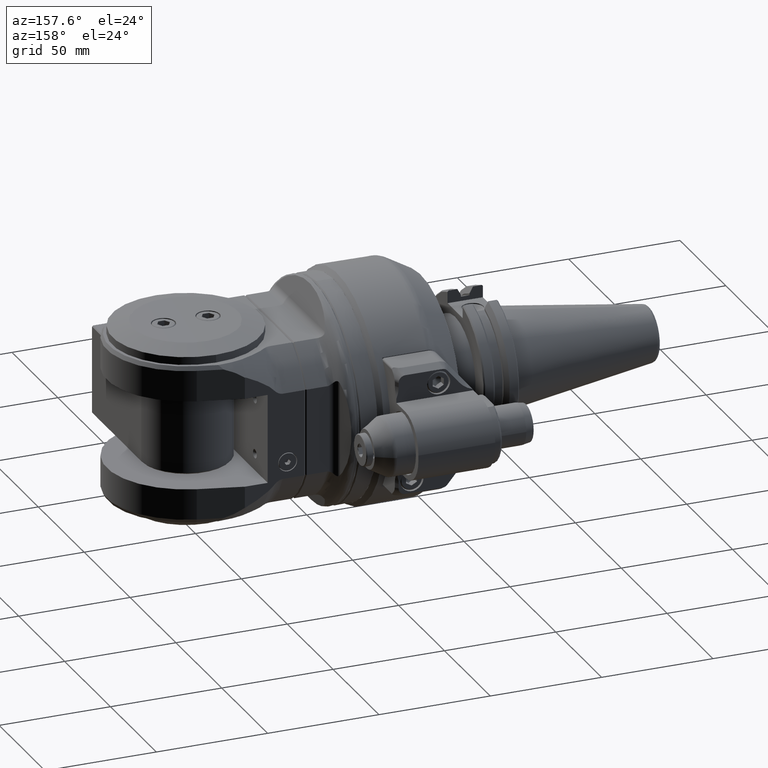
[diagram: clean part render]
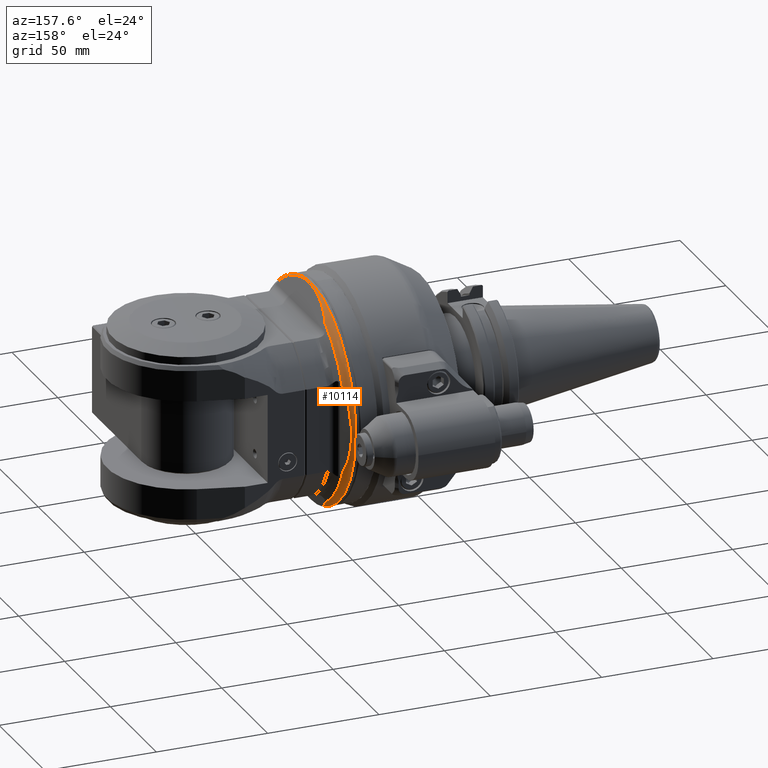
[diagram: same view with one face highlighted and labeled with its STEP entity id]
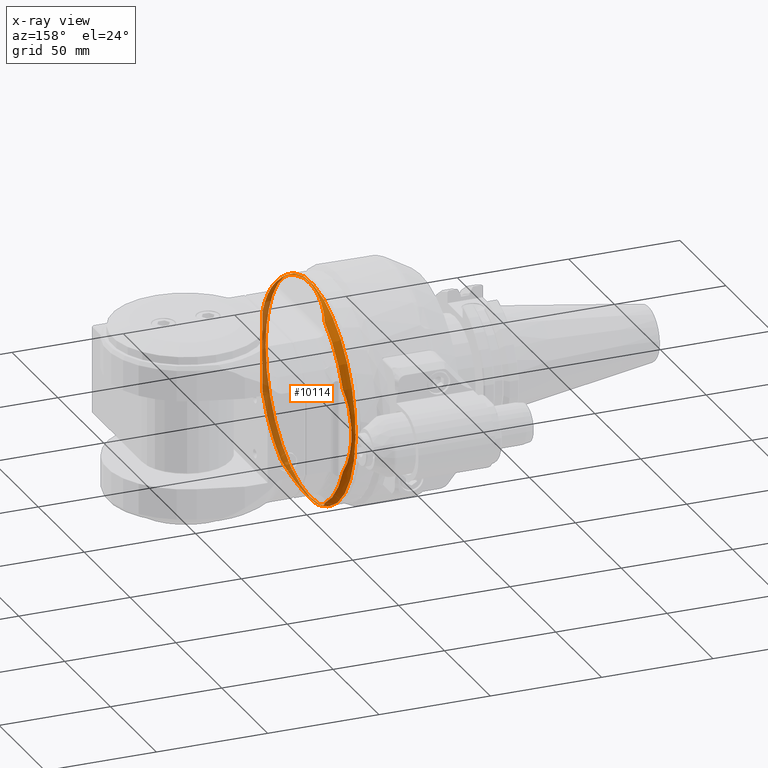
[diagram: x-ray of the same camera — body ghosted, the highlighted face saturated]
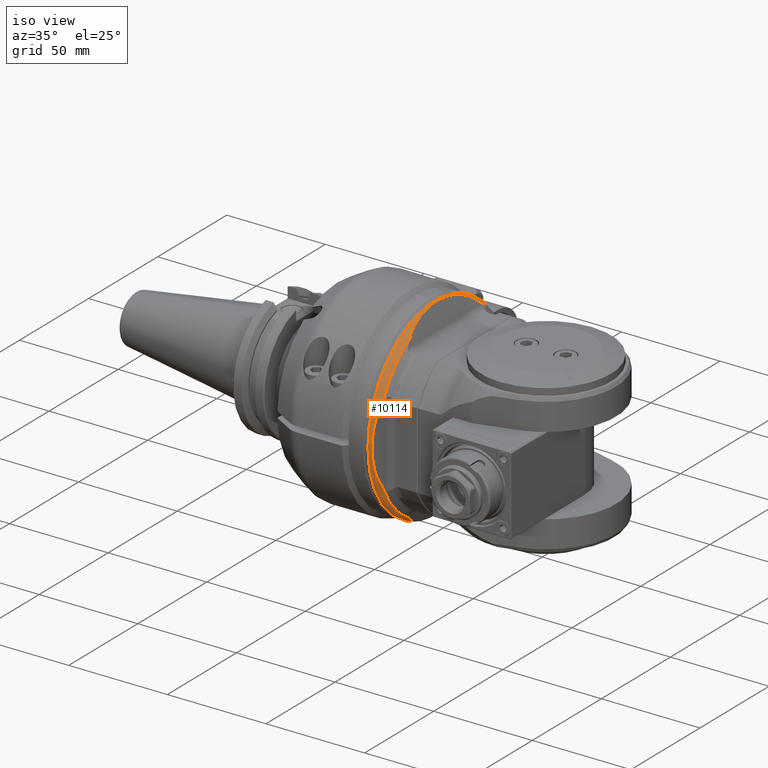
[diagram: same view with one face highlighted and labeled with its STEP entity id]
A machine part, auxiliary view. The second image highlights one B-rep face of the part: STEP entity #10114.
The next image is the same camera in x-ray: the body ghosted, the highlighted face saturated — about 37% of this face is hidden behind the body in this view.
A second angle (iso view) of the same face is appended — the face is thin or edge-on in the first view.
In plain terms, the highlighted toroidal blend (fillet) surface has major radius 44 mm and minor (blend) radius 5 mm.
Its self-contained STEP definition (entity closure, byte-faithful):
#215=TOROIDAL_SURFACE('',#10879,44.,5.);
#519=CIRCLE('',#10823,47.53553390593);
#520=CIRCLE('',#10824,47.53553390593);
#539=CIRCLE('',#10876,47.53553390593);
#540=CIRCLE('',#10880,5.);
#541=CIRCLE('',#10881,49.);
#542=CIRCLE('',#10882,49.);
#543=CIRCLE('',#10883,47.53553390593);
#544=CIRCLE('',#10884,47.53553390593);
#1031=FACE_OUTER_BOUND('',#1671,.T.);
#1671=EDGE_LOOP('',(#7102,#7103,#7104,#7105,#7106,#7107,#7108,#7109,#7110,
#7111,#7112,#7113,#7114));
#3757=B_SPLINE_CURVE_WITH_KNOTS('',3,(#15655,#15656,#15657,#15658,#15659,
#15660,#15661,#15662,#15663,#15664,#15665,#15666,#15667,#15668,#15669,#15670,
#15671,#15672,#15673,#15674,#15675,#15676,#15677),.UNSPECIFIED.,.F.,.F.,
(4,2,2,2,2,3,2,2,2,2,4),(-2.43984454532144,-2.00015099254528,-1.74310632766035,
-1.48606166277542,-0.743030831387708,0.,0.743030831387706,1.48606166277541,
1.74310632766034,2.00015099254527,2.43984454532144),.UNSPECIFIED.);
#3758=B_SPLINE_CURVE_WITH_KNOTS('',3,(#15685,#15686,#15687,#15688,#15689,
#15690,#15691,#15692,#15693,#15694,#15695,#15696,#15697,#15698,#15699,#15700,
#15701,#15702,#15703,#15704,#15705,#15706,#15707),.UNSPECIFIED.,.F.,.F.,
(4,2,2,2,2,3,2,2,2,2,4),(6.74242971011523,6.90900004831153,7.11758587013508,
7.32617169195863,7.96213551737785,8.59809934279708,9.2340631682163,9.87002699363553,
10.0786128154591,10.2871986372826,10.4537689754789),.UNSPECIFIED.);
#3759=B_SPLINE_CURVE_WITH_KNOTS('',3,(#15711,#15712,#15713,#15714,#15715,
#15716,#15717,#15718,#15719,#15720,#15721,#15722,#15723,#15724,#15725,#15726,
#15727,#15728,#15729,#15730,#15731,#15732,#15733),.UNSPECIFIED.,.F.,.F.,
(4,2,2,2,2,3,2,2,2,2,4),(8.13167988471684,8.57137343749194,8.82841810237709,
9.08546276726223,9.8284935986504,10.5715244300386,11.3145552614267,12.0575860928149,
12.3146307577001,12.5716754225852,13.0113689753603),.UNSPECIFIED.);
#3760=B_SPLINE_CURVE_WITH_KNOTS('',3,(#15736,#15737,#15738,#15739,#15740,
#15741,#15742,#15743,#15744,#15745,#15746,#15747,#15748,#15749,#15750,#15751,
#15752,#15753,#15754,#15755,#15756,#15757,#15758),.UNSPECIFIED.,.F.,.F.,
(4,2,2,2,2,3,2,2,2,2,4),(6.74242971010642,6.90900004830388,7.1175858701272,
7.32617169195051,7.96213551736924,8.59809934278796,9.23406316820669,9.87002699362542,
10.0786128154487,10.287198637272,10.4537689754695),.UNSPECIFIED.);
#4232=VERTEX_POINT('',#15463);
#4233=VERTEX_POINT('',#15465);
#4234=VERTEX_POINT('',#15467);
#4254=VERTEX_POINT('',#15649);
#4255=VERTEX_POINT('',#15651);
#4256=VERTEX_POINT('',#15679);
#4257=VERTEX_POINT('',#15681);
#4258=VERTEX_POINT('',#15684);
#4259=VERTEX_POINT('',#15708);
#4260=VERTEX_POINT('',#15710);
#4261=VERTEX_POINT('',#15734);
#5305=EDGE_CURVE('',#4233,#4232,#519,.T.);
#5306=EDGE_CURVE('',#4234,#4233,#520,.T.);
#5358=EDGE_CURVE('',#4255,#4254,#539,.T.);
#5360=EDGE_CURVE('',#4255,#4232,#3757,.T.);
#5361=EDGE_CURVE('',#4233,#4256,#540,.T.);
#5362=EDGE_CURVE('',#4256,#4257,#541,.T.);
#5363=EDGE_CURVE('',#4257,#4256,#542,.T.);
#5364=EDGE_CURVE('',#4258,#4254,#3758,.T.);
#5365=EDGE_CURVE('',#4258,#4259,#543,.T.);
#5366=EDGE_CURVE('',#4259,#4260,#3759,.T.);
#5367=EDGE_CURVE('',#4260,#4261,#544,.T.);
#5368=EDGE_CURVE('',#4234,#4261,#3760,.T.);
#7102=ORIENTED_EDGE('',*,*,#5306,.T.);
#7103=ORIENTED_EDGE('',*,*,#5361,.T.);
#7104=ORIENTED_EDGE('',*,*,#5362,.T.);
#7105=ORIENTED_EDGE('',*,*,#5363,.T.);
#7106=ORIENTED_EDGE('',*,*,#5361,.F.);
#7107=ORIENTED_EDGE('',*,*,#5305,.T.);
#7108=ORIENTED_EDGE('',*,*,#5360,.F.);
#7109=ORIENTED_EDGE('',*,*,#5358,.T.);
#7110=ORIENTED_EDGE('',*,*,#5364,.F.);
#7111=ORIENTED_EDGE('',*,*,#5365,.T.);
#7112=ORIENTED_EDGE('',*,*,#5366,.T.);
#7113=ORIENTED_EDGE('',*,*,#5367,.T.);
#7114=ORIENTED_EDGE('',*,*,#5368,.F.);
#10114=ADVANCED_FACE('',(#1031),#215,.T.);
#10823=AXIS2_PLACEMENT_3D('',#15466,#12150,#12151);
#10824=AXIS2_PLACEMENT_3D('',#15468,#12152,#12153);
#10876=AXIS2_PLACEMENT_3D('',#15652,#12270,#12271);
#10879=AXIS2_PLACEMENT_3D('',#15678,#12276,#12277);
#10880=AXIS2_PLACEMENT_3D('',#15680,#12278,#12279);
#10881=AXIS2_PLACEMENT_3D('',#15682,#12280,#12281);
#10882=AXIS2_PLACEMENT_3D('',#15683,#12282,#12283);
#10883=AXIS2_PLACEMENT_3D('',#15709,#12284,#12285);
#10884=AXIS2_PLACEMENT_3D('',#15735,#12286,#12287);
#12150=DIRECTION('center_axis',(0.,1.,0.));
#12151=DIRECTION('ref_axis',(0.392601429369895,0.,0.919708713483087));
#12152=DIRECTION('center_axis',(0.,1.,0.));
#12153=DIRECTION('ref_axis',(0.392601429369895,0.,0.919708713483087));
#12270=DIRECTION('center_axis',(0.,1.,0.));
#12271=DIRECTION('ref_axis',(0.864460332441025,0.,-0.502701038029515));
#12276=DIRECTION('center_axis',(0.,-1.,0.));
#12277=DIRECTION('ref_axis',(-0.681998360062485,0.,-0.731353701619183));
#12278=DIRECTION('center_axis',(-0.731353701619184,0.,0.681998360062484));
#12279=DIRECTION('ref_axis',(0.681998360062484,0.,0.731353701619184));
#12280=DIRECTION('center_axis',(0.,-1.,0.));
#12281=DIRECTION('ref_axis',(0.681998360062484,0.,0.731353701619183));
#12282=DIRECTION('center_axis',(0.,-1.,0.));
#12283=DIRECTION('ref_axis',(0.681998360062484,0.,0.731353701619183));
#12284=DIRECTION('center_axis',(0.,1.,0.));
#12285=DIRECTION('ref_axis',(-0.392601429369895,0.,-0.919708713483087));
#12286=DIRECTION('center_axis',(0.,1.,0.));
#12287=DIRECTION('ref_axis',(-0.864460332441025,0.,0.502701038029515));
#15463=CARTESIAN_POINT('',(41.09258344308,52.53553390593,23.8961622378));
#15465=CARTESIAN_POINT('',(32.4191561685389,52.53553390593,34.7652886805461));
#15466=CARTESIAN_POINT('Origin',(0.,52.53553390593,0.));
#15467=CARTESIAN_POINT('',(18.66251855733,52.53553390593,43.71884473336));
#15468=CARTESIAN_POINT('Origin',(0.,52.53553390593,0.));
#15649=CARTESIAN_POINT('',(18.66251855733,52.53553390593,-43.71884473336));
#15651=CARTESIAN_POINT('',(41.09258344308,52.53553390593,-23.8961622378));
#15652=CARTESIAN_POINT('Origin',(0.,52.53553390593,0.));
#15655=CARTESIAN_POINT('Ctrl Pts',(41.0925834430739,52.5355339059244,-23.8961622377918));
#15656=CARTESIAN_POINT('Ctrl Pts',(42.1469213887792,52.9192815350185,-22.8464613976639));
#15657=CARTESIAN_POINT('Ctrl Pts',(43.1207032652178,53.2737091527101,-21.4864127810795));
#15658=CARTESIAN_POINT('Ctrl Pts',(44.2998333489219,53.7028774055062,-19.532112221248));
#15659=CARTESIAN_POINT('Ctrl Pts',(44.7411288718907,53.8634958403819,-18.7160057555082));
#15660=CARTESIAN_POINT('Ctrl Pts',(45.5470561404323,54.1568293771145,-17.0414240138216));
#15661=CARTESIAN_POINT('Ctrl Pts',(45.912137861575,54.2897082566851,-16.1831940298393));
#15662=CARTESIAN_POINT('Ctrl Pts',(47.100795970839,54.7223444271764,-13.0989264161825));
#15663=CARTESIAN_POINT('Ctrl Pts',(47.8191777057936,54.9838139955404,-10.4964622275494));
#15664=CARTESIAN_POINT('Ctrl Pts',(48.7455375622186,55.3209814094982,-5.1853010517597));
#15665=CARTESIAN_POINT('Ctrl Pts',(48.9543527222243,55.3969839122039,-2.47676943795903));
#15666=CARTESIAN_POINT('Ctrl Pts',(48.9543527222243,55.3969839122039,0.));
#15667=CARTESIAN_POINT('Ctrl Pts',(48.9543527222243,55.3969839122039,2.47676943795902));
#15668=CARTESIAN_POINT('Ctrl Pts',(48.7455375622186,55.3209814094982,5.18530105175969));
#15669=CARTESIAN_POINT('Ctrl Pts',(47.8191777057936,54.9838139955404,10.4964622275494));
#15670=CARTESIAN_POINT('Ctrl Pts',(47.100795970839,54.7223444271764,13.0989264161825));
#15671=CARTESIAN_POINT('Ctrl Pts',(45.912137861575,54.2897082566851,16.1831940298393));
#15672=CARTESIAN_POINT('Ctrl Pts',(45.5470561404323,54.1568293771145,17.0414240138216));
#15673=CARTESIAN_POINT('Ctrl Pts',(44.7411288718907,53.8634958403819,18.7160057555082));
#15674=CARTESIAN_POINT('Ctrl Pts',(44.2998333489219,53.7028774055062,19.532112221248));
#15675=CARTESIAN_POINT('Ctrl Pts',(43.1207032652178,53.2737091527101,21.4864127810796));
#15676=CARTESIAN_POINT('Ctrl Pts',(42.1469213887792,52.9192815350185,22.8464613976639));
#15677=CARTESIAN_POINT('Ctrl Pts',(41.0925834430739,52.5355339059244,23.8961622377918));
#15678=CARTESIAN_POINT('Origin',(0.,56.07106781187,0.));
#15679=CARTESIAN_POINT('',(33.4179196430617,56.07106781187,35.83633137934));
#15680=CARTESIAN_POINT('Origin',(30.0079278427493,56.07106781187,32.1795628712441));
#15681=CARTESIAN_POINT('',(1.06581410364E-14,56.07106781187,49.));
#15682=CARTESIAN_POINT('Origin',(0.,56.07106781187,0.));
#15683=CARTESIAN_POINT('Origin',(0.,56.07106781187,0.));
#15684=CARTESIAN_POINT('',(-18.66251855733,52.53553390593,-43.71884473336));
#15685=CARTESIAN_POINT('Ctrl Pts',(-18.6625185573252,52.5355339059313,-43.7188447333527));
#15686=CARTESIAN_POINT('Ctrl Pts',(-18.1785061137548,52.659986457044,-44.0607753073283));
#15687=CARTESIAN_POINT('Ctrl Pts',(-17.6765894477361,52.7733602681694,-44.3722672933529));
#15688=CARTESIAN_POINT('Ctrl Pts',(-16.6077112112572,52.9953576683359,-44.9822001374881));
#15689=CARTESIAN_POINT('Ctrl Pts',(-15.9360652240461,53.1199340880508,-45.3244710376511));
#15690=CARTESIAN_POINT('Ctrl Pts',(-14.5613450703855,53.3472403577318,-45.9489898809001));
#15691=CARTESIAN_POINT('Ctrl Pts',(-13.8584780317633,53.4501167146964,-46.2316403486559));
#15692=CARTESIAN_POINT('Ctrl Pts',(-11.2349451896547,53.7992843012753,-47.190970408387));
#15693=CARTESIAN_POINT('Ctrl Pts',(-8.99718388055526,54.0112865494423,-47.7734417980994));
#15694=CARTESIAN_POINT('Ctrl Pts',(-4.43963496242562,54.2845982217996,-48.5243594463742));
#15695=CARTESIAN_POINT('Ctrl Pts',(-2.11987941806408,54.345970188841,-48.692977540008));
#15696=CARTESIAN_POINT('Ctrl Pts',(0.,54.345970188841,-48.692977540008));
#15697=CARTESIAN_POINT('Ctrl Pts',(2.11987941806408,54.345970188841,-48.692977540008));
#15698=CARTESIAN_POINT('Ctrl Pts',(4.43963496242562,54.2845982217996,-48.5243594463742));
#15699=CARTESIAN_POINT('Ctrl Pts',(8.99718388055526,54.0112865494423,-47.7734417980994));
#15700=CARTESIAN_POINT('Ctrl Pts',(11.2349451896547,53.7992843012753,-47.190970408387));
#15701=CARTESIAN_POINT('Ctrl Pts',(13.8584780317633,53.4501167146964,-46.2316403486559));
#15702=CARTESIAN_POINT('Ctrl Pts',(14.5613450703855,53.3472403577318,-45.9489898809001));
#15703=CARTESIAN_POINT('Ctrl Pts',(15.9360652240461,53.1199340880508,-45.3244710376511));
#15704=CARTESIAN_POINT('Ctrl Pts',(16.6077112112572,52.9953576683359,-44.9822001374881));
#15705=CARTESIAN_POINT('Ctrl Pts',(17.6765894477361,52.7733602681694,-44.3722672933529));
#15706=CARTESIAN_POINT('Ctrl Pts',(18.1785061137548,52.659986457044,-44.0607753073283));
#15707=CARTESIAN_POINT('Ctrl Pts',(18.6625185573252,52.5355339059313,-43.7188447333527));
#15708=CARTESIAN_POINT('',(-41.09258344308,52.53553390593,-23.8961622378));
#15709=CARTESIAN_POINT('Origin',(0.,52.53553390593,0.));
#15710=CARTESIAN_POINT('',(-41.09258344308,52.53553390593,23.8961622378));
#15711=CARTESIAN_POINT('Ctrl Pts',(-41.0925834430775,52.5355339059304,-23.8961622377976));
#15712=CARTESIAN_POINT('Ctrl Pts',(-42.1469213887799,52.9192815350235,-22.8464613976703));
#15713=CARTESIAN_POINT('Ctrl Pts',(-43.1207032652155,53.273709152714,-21.4864127810897));
#15714=CARTESIAN_POINT('Ctrl Pts',(-44.2998333489183,53.7028774055097,-19.5321122212607));
#15715=CARTESIAN_POINT('Ctrl Pts',(-44.7411288718876,53.8634958403854,-18.7160057555203));
#15716=CARTESIAN_POINT('Ctrl Pts',(-45.54705614043,54.1568293771184,-17.0414240138323));
#15717=CARTESIAN_POINT('Ctrl Pts',(-45.9121378615731,54.2897082566891,-16.1831940298494));
#15718=CARTESIAN_POINT('Ctrl Pts',(-47.1007959708381,54.7223444271808,-13.0989264161906));
#15719=CARTESIAN_POINT('Ctrl Pts',(-47.8191777057933,54.983813995545,-10.4964622275559));
#15720=CARTESIAN_POINT('Ctrl Pts',(-48.7455375622191,55.3209814095032,-5.18530105176294));
#15721=CARTESIAN_POINT('Ctrl Pts',(-48.9543527222249,55.3969839122088,-2.47676943796058));
#15722=CARTESIAN_POINT('Ctrl Pts',(-48.9543527222249,55.3969839122088,0.));
#15723=CARTESIAN_POINT('Ctrl Pts',(-48.9543527222249,55.3969839122088,2.47676943796057));
#15724=CARTESIAN_POINT('Ctrl Pts',(-48.7455375622191,55.3209814095032,5.18530105176294));
#15725=CARTESIAN_POINT('Ctrl Pts',(-47.8191777057933,54.983813995545,10.4964622275559));
#15726=CARTESIAN_POINT('Ctrl Pts',(-47.1007959708381,54.7223444271808,13.0989264161906));
#15727=CARTESIAN_POINT('Ctrl Pts',(-45.9121378615731,54.2897082566891,16.1831940298494));
#15728=CARTESIAN_POINT('Ctrl Pts',(-45.54705614043,54.1568293771184,17.0414240138323));
#15729=CARTESIAN_POINT('Ctrl Pts',(-44.7411288718876,53.8634958403854,18.7160057555203));
#15730=CARTESIAN_POINT('Ctrl Pts',(-44.2998333489183,53.7028774055097,19.5321122212607));
#15731=CARTESIAN_POINT('Ctrl Pts',(-43.1207032652155,53.273709152714,21.4864127810897));
#15732=CARTESIAN_POINT('Ctrl Pts',(-42.1469213887799,52.9192815350235,22.8464613976703));
#15733=CARTESIAN_POINT('Ctrl Pts',(-41.0925834430775,52.5355339059304,23.8961622377976));
#15734=CARTESIAN_POINT('',(-18.66251855733,52.53553390593,43.71884473336));
#15735=CARTESIAN_POINT('Origin',(0.,52.53553390593,0.));
#15736=CARTESIAN_POINT('Ctrl Pts',(18.6625185573209,52.5355339059258,43.7188447333486));
#15737=CARTESIAN_POINT('Ctrl Pts',(18.1785061137474,52.6599864570395,44.060775307327));
#15738=CARTESIAN_POINT('Ctrl Pts',(17.676589447725,52.7733602681658,44.3722672933541));
#15739=CARTESIAN_POINT('Ctrl Pts',(16.6077112112433,52.9953576683329,44.9822001374906));
#15740=CARTESIAN_POINT('Ctrl Pts',(15.936065224033,53.1199340880476,45.3244710376532));
#15741=CARTESIAN_POINT('Ctrl Pts',(14.5613450703739,53.3472403577283,45.9489898809014));
#15742=CARTESIAN_POINT('Ctrl Pts',(13.8584780317524,53.4501167146927,46.2316403486568));
#15743=CARTESIAN_POINT('Ctrl Pts',(11.2349451896461,53.7992843012713,47.1909704083869));
#15744=CARTESIAN_POINT('Ctrl Pts',(8.99718388054829,54.0112865494381,47.7734417980987));
#15745=CARTESIAN_POINT('Ctrl Pts',(4.43963496242216,54.284598221795,48.5243594463727));
#15746=CARTESIAN_POINT('Ctrl Pts',(2.11987941806242,54.3459701888364,48.6929775400063));
#15747=CARTESIAN_POINT('Ctrl Pts',(0.,54.3459701888364,48.6929775400063));
#15748=CARTESIAN_POINT('Ctrl Pts',(-2.11987941806243,54.3459701888364,48.6929775400063));
#15749=CARTESIAN_POINT('Ctrl Pts',(-4.43963496242216,54.284598221795,48.5243594463727));
#15750=CARTESIAN_POINT('Ctrl Pts',(-8.99718388054829,54.0112865494381,47.7734417980987));
#15751=CARTESIAN_POINT('Ctrl Pts',(-11.2349451896461,53.7992843012713,47.1909704083869));
#15752=CARTESIAN_POINT('Ctrl Pts',(-13.8584780317524,53.4501167146927,46.2316403486568));
#15753=CARTESIAN_POINT('Ctrl Pts',(-14.5613450703739,53.3472403577283,45.9489898809014));
#15754=CARTESIAN_POINT('Ctrl Pts',(-15.936065224033,53.1199340880476,45.3244710376532));
#15755=CARTESIAN_POINT('Ctrl Pts',(-16.6077112112433,52.9953576683329,44.9822001374906));
#15756=CARTESIAN_POINT('Ctrl Pts',(-17.676589447725,52.7733602681658,44.3722672933541));
#15757=CARTESIAN_POINT('Ctrl Pts',(-18.1785061137474,52.6599864570395,44.060775307327));
#15758=CARTESIAN_POINT('Ctrl Pts',(-18.6625185573209,52.5355339059258,43.7188447333486));